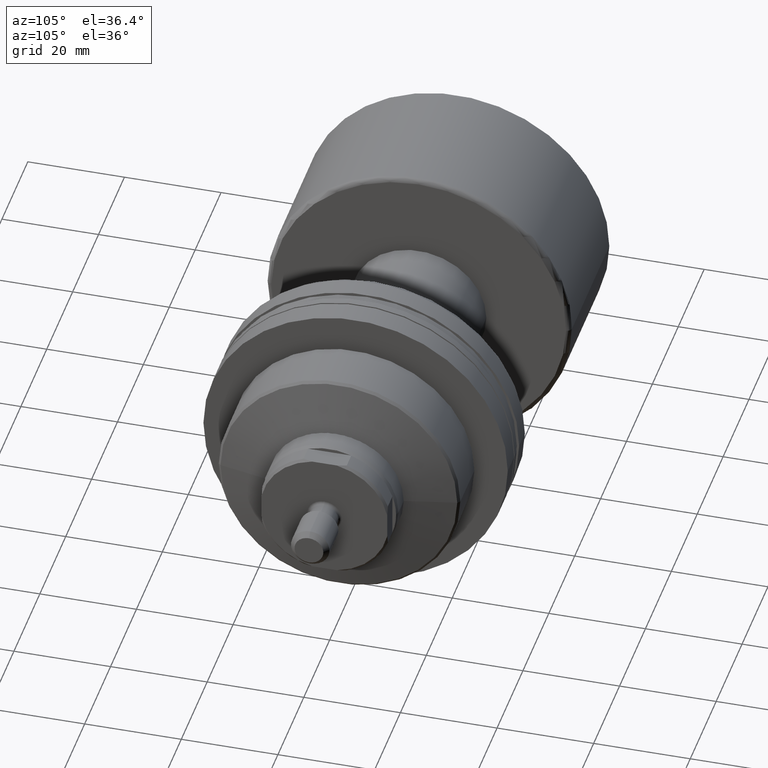
[diagram: clean part render]
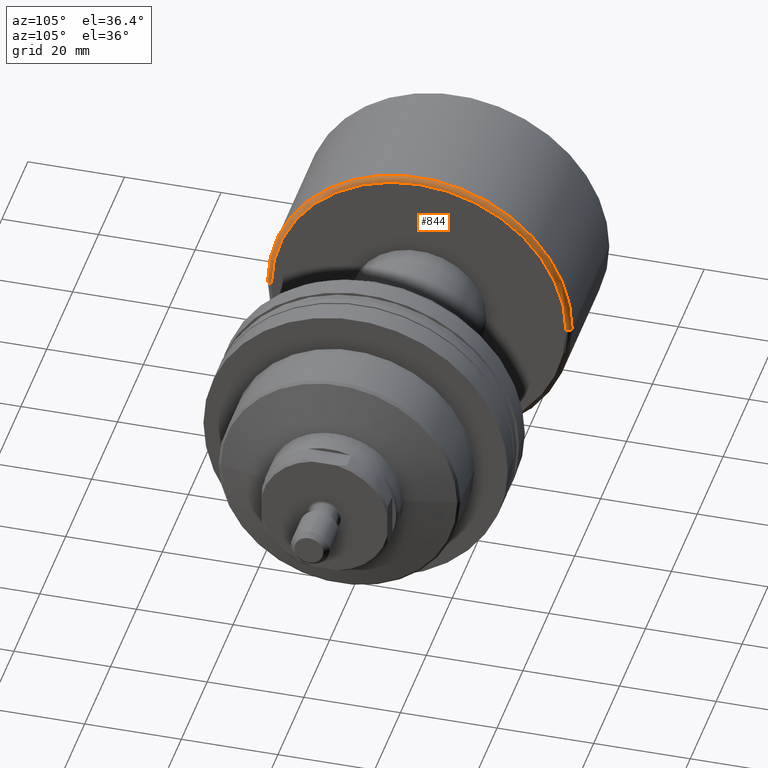
[diagram: same view with one face highlighted and labeled with its STEP entity id]
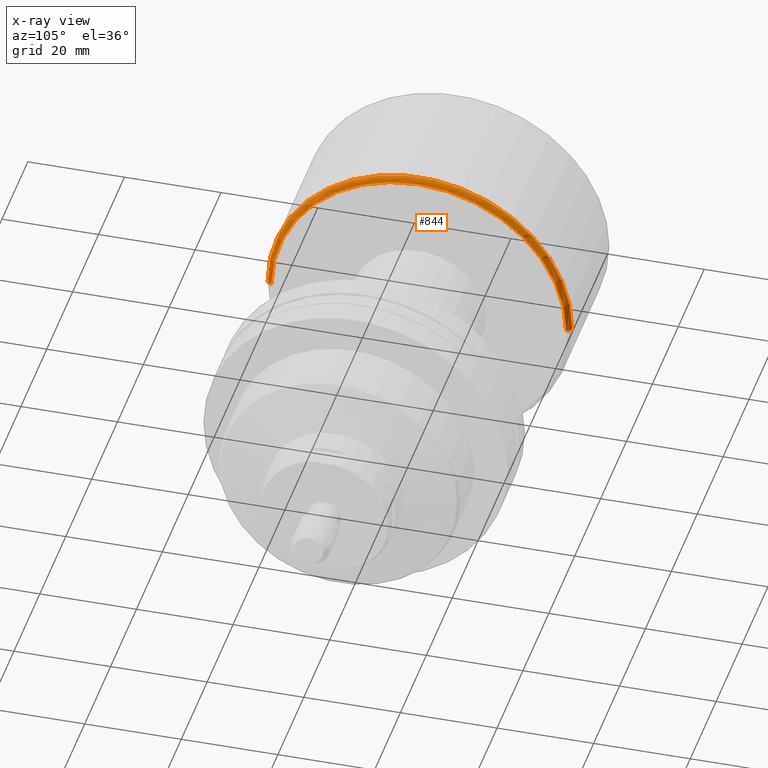
[diagram: x-ray of the same camera — body ghosted, the highlighted face saturated]
A machine part, auxiliary view. The second image highlights one B-rep face of the part: STEP entity #844.
The next image is the same camera in x-ray: the body ghosted, the highlighted face saturated — about 0% of this face is hidden behind the body in this view.
In plain terms, the highlighted toroidal blend (fillet) surface has major radius 30.5 mm and minor (blend) radius 1 mm.
Its self-contained STEP definition (entity closure, byte-faithful):
#14 = DIRECTION ( 'NONE',  ( 0.000000000000000000, -1.000000000000000000, 0.000000000000000000 ) ) ;
#139 = DIRECTION ( 'NONE',  ( -1.000000000000000000, -1.069542322069065801E-17, -0.000000000000000000 ) ) ;
#164 = DIRECTION ( 'NONE',  ( 1.069542322069065801E-17, -1.000000000000000000, 0.000000000000000000 ) ) ;
#205 = DIRECTION ( 'NONE',  ( -1.000000000000000000, -1.069542322069065801E-17, -0.000000000000000000 ) ) ;
#342 = ORIENTED_EDGE ( 'NONE', *, *, #1712, .F. ) ;
#454 = CARTESIAN_POINT ( 'NONE',  ( 30.19999999999999929, 31.50000000000000000, 3.857637417314162689E-15 ) ) ;
#505 = CARTESIAN_POINT ( 'NONE',  ( 30.19999999999999929, 3.230017812648578475E-16, 0.000000000000000000 ) ) ;
#514 = ORIENTED_EDGE ( 'NONE', *, *, #1095, .T. ) ;
#624 = CARTESIAN_POINT ( 'NONE',  ( 31.19999999999999929, 3.336972044855484916E-16, 0.000000000000000000 ) ) ;
#656 = CARTESIAN_POINT ( 'NONE',  ( 31.19999999999999929, 30.50000000000000000, 3.796405077356795115E-15 ) ) ;
#666 = TOROIDAL_SURFACE ( 'NONE', #1034, 30.50000000000000000, 1.000000000000000888 ) ;
#675 = AXIS2_PLACEMENT_3D ( 'NONE', #505, #2651, #2022 ) ;
#702 = ORIENTED_EDGE ( 'NONE', *, *, #2100, .T. ) ;
#713 = CIRCLE ( 'NONE', #675, 31.50000000000000000 ) ;
#787 = VERTEX_POINT ( 'NONE', #656 ) ;
#844 = ADVANCED_FACE ( 'NONE', ( #1649 ), #666, .T. ) ;
#940 = DIRECTION ( 'NONE',  ( 0.000000000000000000, 0.000000000000000000, -1.000000000000000000 ) ) ;
#1030 = CARTESIAN_POINT ( 'NONE',  ( 30.19999999999999929, -31.50000000000000000, 0.000000000000000000 ) ) ;
#1034 = AXIS2_PLACEMENT_3D ( 'NONE', #1061, #139, #164 ) ;
#1035 = EDGE_LOOP ( 'NONE', ( #702, #514, #342, #1921 ) ) ;
#1061 = CARTESIAN_POINT ( 'NONE',  ( 30.19999999999999929, 0.000000000000000000, 0.000000000000000000 ) ) ;
#1095 = EDGE_CURVE ( 'NONE', #787, #1118, #2374, .T. ) ;
#1118 = VERTEX_POINT ( 'NONE', #454 ) ;
#1159 = DIRECTION ( 'NONE',  ( -1.000000000000000000, 0.000000000000000000, 0.000000000000000000 ) ) ;
#1176 = AXIS2_PLACEMENT_3D ( 'NONE', #1751, #1697, #2523 ) ;
#1231 = AXIS2_PLACEMENT_3D ( 'NONE', #1456, #940, #1159 ) ;
#1315 = VERTEX_POINT ( 'NONE', #1447 ) ;
#1413 = AXIS2_PLACEMENT_3D ( 'NONE', #624, #205, #14 ) ;
#1447 = CARTESIAN_POINT ( 'NONE',  ( 31.19999999999999929, -30.50000000000000000, 0.000000000000000000 ) ) ;
#1456 = CARTESIAN_POINT ( 'NONE',  ( 30.19999999999999929, -30.50000000000000000, 0.000000000000000000 ) ) ;
#1503 = CIRCLE ( 'NONE', #1413, 30.50000000000000000 ) ;
#1649 = FACE_OUTER_BOUND ( 'NONE', #1035, .T. ) ;
#1697 = DIRECTION ( 'NONE',  ( 1.309811581274509052E-33, -1.224646799147353207E-16, 1.000000000000000000 ) ) ;
#1712 = EDGE_CURVE ( 'NONE', #2485, #1118, #713, .T. ) ;
#1751 = CARTESIAN_POINT ( 'NONE',  ( 30.19999999999999929, 30.50000000000000000, 3.735172737399427541E-15 ) ) ;
#1921 = ORIENTED_EDGE ( 'NONE', *, *, #2751, .F. ) ;
#2022 = DIRECTION ( 'NONE',  ( 0.000000000000000000, -1.000000000000000000, 0.000000000000000000 ) ) ;
#2100 = EDGE_CURVE ( 'NONE', #1315, #787, #1503, .T. ) ;
#2374 = CIRCLE ( 'NONE', #1176, 1.000000000000000888 ) ;
#2485 = VERTEX_POINT ( 'NONE', #1030 ) ;
#2523 = DIRECTION ( 'NONE',  ( 0.000000000000000000, -1.000000000000000000, -1.224646799147357151E-16 ) ) ;
#2568 = CIRCLE ( 'NONE', #1231, 1.000000000000000888 ) ;
#2651 = DIRECTION ( 'NONE',  ( -1.000000000000000000, -1.069542322069065801E-17, -0.000000000000000000 ) ) ;
#2751 = EDGE_CURVE ( 'NONE', #1315, #2485, #2568, .T. ) ;